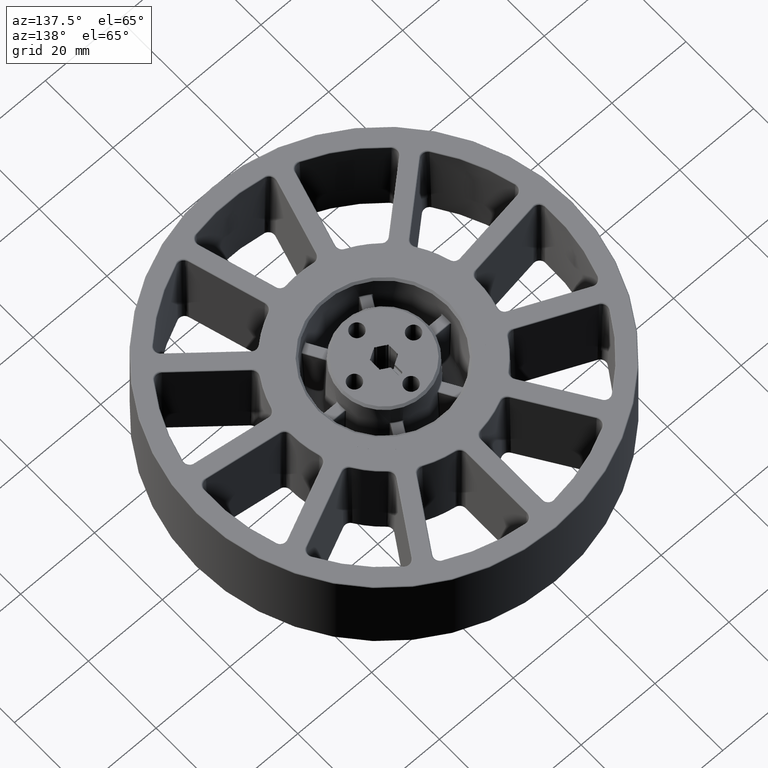
[diagram: clean part render]
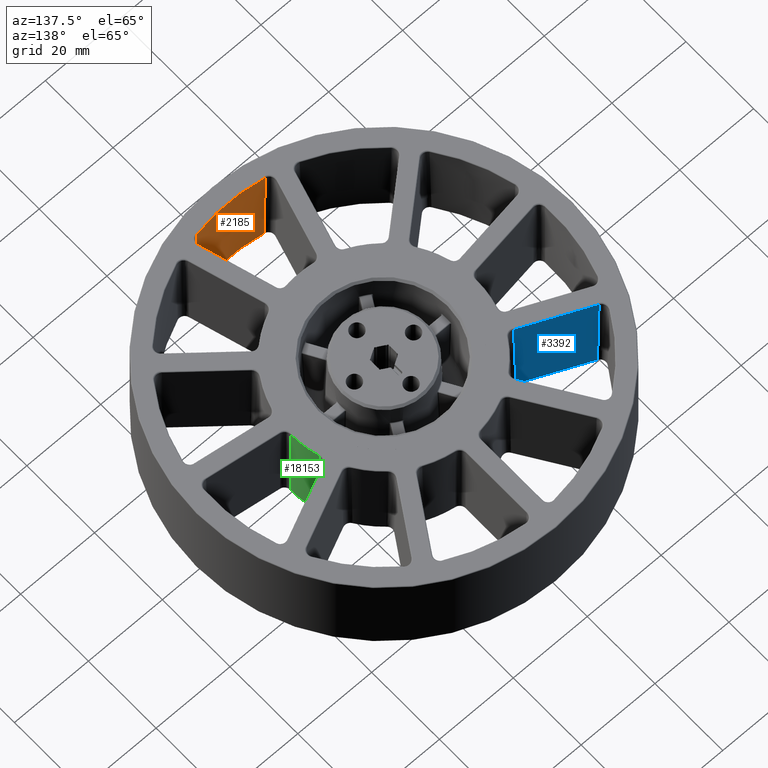
[diagram: same view with three faces highlighted in distinct colors, each labeled with its STEP entity id]
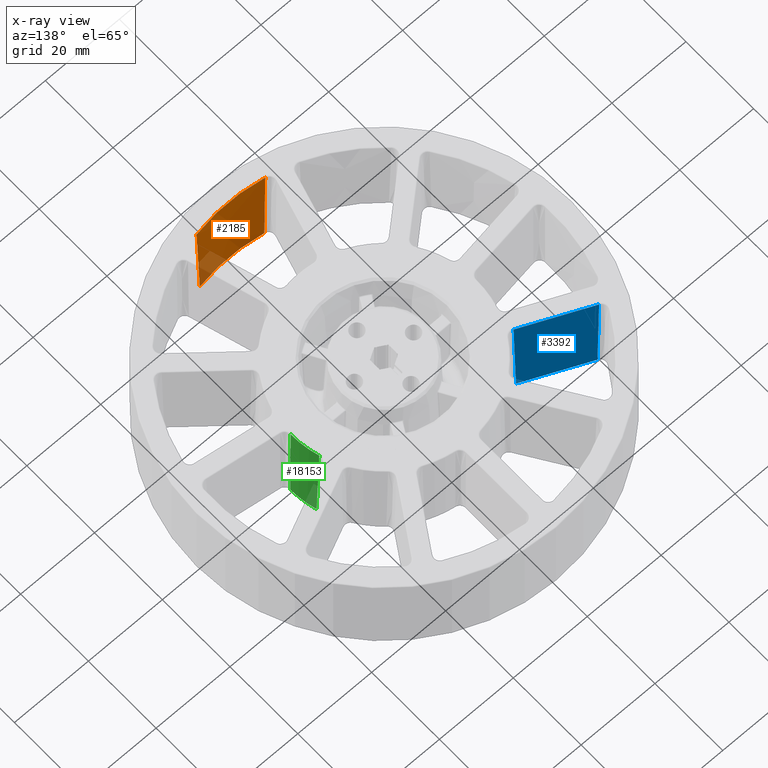
[diagram: x-ray of the same camera — body ghosted, the three highlighted faces saturated]
A machine part, auxiliary view with three faces highlighted in distinct colors.
The next image is the same camera in x-ray (body ghosted, the three faces saturated) — at least one of them is partly hidden behind the body in this view.
Their STEP definitions:

[orange] entity #2185 — the highlighted conical surface has half-angle 1 deg.
#293 = CARTESIAN_POINT ( 'NONE',  ( -8.987327221438798475, -45.03520027336167431, -1.062390363368399537 ) ) ;
#1041 = CARTESIAN_POINT ( 'NONE',  ( 9.272836720811612921, -45.20064032611333005, 11.47565375460269443 ) ) ;
#2185 = ADVANCED_FACE ( 'NONE', ( #26363 ), #27624, .F. ) ;
#2505 = CARTESIAN_POINT ( 'NONE',  ( -8.772119389273258960, -44.90974145527427908, -10.49792821816643773 ) ) ;
#2632 = CIRCLE ( 'NONE', #7347, 46.15900243943838888 ) ;
#3536 = EDGE_CURVE ( 'NONE', #22991, #25358, #2632, .T. ) ;
#5559 = VERTEX_POINT ( 'NONE', #12776 ) ;
#5622 = CARTESIAN_POINT ( 'NONE',  ( 8.798305318948987264, -44.92505878579333967, -9.350881219568577762 ) ) ;
#6300 = AXIS2_PLACEMENT_3D ( 'NONE', #26082, #24473, #24417 ) ;
#6346 = EDGE_CURVE ( 'NONE', #5559, #13563, #22849, .T. ) ;
#6926 = EDGE_LOOP ( 'NONE', ( #28165, #28259, #10313, #10317 ) ) ;
#7104 = CARTESIAN_POINT ( 'NONE',  ( -9.295015327277994288, -45.21345149697981469, 12.45043291123506890 ) ) ;
#7347 = AXIS2_PLACEMENT_3D ( 'NONE', #27398, #27269, #27139 ) ;
#7868 = CARTESIAN_POINT ( 'NONE',  ( 9.035747411843701116, -45.06333720269211085, 1.062359470470772393 ) ) ;
#8802 = CARTESIAN_POINT ( 'NONE',  ( -8.727759427040142626, -44.88381799949333129, -12.44156708876493056 ) ) ;
#9351 = CARTESIAN_POINT ( 'NONE',  ( -9.083726326588276834, -45.09113189956106282, 3.169475658939513885 ) ) ;
#10094 = CARTESIAN_POINT ( 'NONE',  ( 9.250654014310025985, -45.18781784307603999, 10.50087483985303649 ) ) ;
#10313 = ORIENTED_EDGE ( 'NONE', *, *, #21542, .T. ) ;
#10317 = ORIENTED_EDGE ( 'NONE', *, *, #3536, .T. ) ;
#11553 = CARTESIAN_POINT ( 'NONE',  ( -8.794293071661620331, -44.92268579263932082, -9.526108407397474664 ) ) ;
#11583 = EDGE_CURVE ( 'NONE', #25358, #5559, #21123, .T. ) ;
#12285 = DIRECTION ( 'NONE',  ( -1.000000000000000000, 0.0000000000000000000, 0.0000000000000000000 ) ) ;
#12401 = DIRECTION ( 'NONE',  ( 0.0000000000000000000, 0.0000000000000000000, -1.000000000000000000 ) ) ;
#12441 = CARTESIAN_POINT ( 'NONE',  ( 0.0000000000000000000, 0.0000000000000000000, -12.44156708876491635 ) ) ;
#12776 = CARTESIAN_POINT ( 'NONE',  ( 8.727759427040790996, -44.88381799949321049, -12.44156708876493411 ) ) ;
#13563 = VERTEX_POINT ( 'NONE', #8802 ) ;
#13717 = CARTESIAN_POINT ( 'NONE',  ( -8.727759427040142626, -44.88381799949333129, -12.44156708876493056 ) ) ;
#14587 = CARTESIAN_POINT ( 'NONE',  ( 8.727759427040790996, -44.88381799949321049, -12.44156708876493411 ) ) ;
#15301 = B_SPLINE_CURVE_WITH_KNOTS ( 'NONE', 3,
 ( #13717, #22226, #2505, #11553, #20162, #293, #9351, #18061, #26494, #7104 ),
 .UNSPECIFIED., .F., .F.,
 ( 4, 3, 3, 4 ),
 ( 0.0002585232296160794373, 0.003175000000303740844, 0.01587500003731460996, 0.02515916789301200426 ),
 .UNSPECIFIED. ) ;
#15310 = AXIS2_PLACEMENT_3D ( 'NONE', #12441, #12401, #12285 ) ;
#16699 = CARTESIAN_POINT ( 'NONE',  ( 8.939269879081351178, -45.00718911153398949, -3.169501897896196407 ) ) ;
#18061 = CARTESIAN_POINT ( 'NONE',  ( -9.154197623543785411, -45.13201997868783621, 6.263125612137177001 ) ) ;
#18780 = CARTESIAN_POINT ( 'NONE',  ( 9.228467192217555848, -45.17498400397844449, 9.526096168364906802 ) ) ;
#20162 = CARTESIAN_POINT ( 'NONE',  ( -8.890849906808083958, -44.97905280589159815, -5.294251757834467220 ) ) ;
#20477 = CARTESIAN_POINT ( 'NONE',  ( -9.295015327277994288, -45.21345149697981469, 12.45043291123506890 ) ) ;
#20852 = CARTESIAN_POINT ( 'NONE',  ( 9.295015327278649764, -45.21345149697967969, 12.45043291123506890 ) ) ;
#21123 = B_SPLINE_CURVE_WITH_KNOTS ( 'NONE', 3,
 ( #20852, #1041, #10094, #18780, #27206, #7868, #16699, #25143, #5622, #14587 ),
 .UNSPECIFIED., .F., .F.,
 ( 4, 3, 3, 4 ),
 ( 0.0002496532194765752229, 0.003175000000285453389, 0.01587500003629858242, 0.02515029788241554196 ),
 .UNSPECIFIED. ) ;
#21542 = EDGE_CURVE ( 'NONE', #13563, #22991, #15301, .T. ) ;
#22226 = CARTESIAN_POINT ( 'NONE',  ( -8.749941513112649005, -44.89678553944020933, -11.46974777910459053 ) ) ;
#22849 = CIRCLE ( 'NONE', #15310, 45.72451096324519426 ) ;
#22991 = VERTEX_POINT ( 'NONE', #20477 ) ;
#24417 = DIRECTION ( 'NONE',  ( -1.000000000000000000, 0.0000000000000000000, 0.0000000000000000000 ) ) ;
#24473 = DIRECTION ( 'NONE',  ( -0.0000000000000000000, -0.0000000000000000000, 1.000000000000000000 ) ) ;
#24647 = CARTESIAN_POINT ( 'NONE',  ( 9.295015327278649764, -45.21345149697967969, 12.45043291123506890 ) ) ;
#25143 = CARTESIAN_POINT ( 'NONE',  ( 8.868808631061250836, -44.96618200383054642, -6.260192807226189871 ) ) ;
#25358 = VERTEX_POINT ( 'NONE', #24647 ) ;
#26082 = CARTESIAN_POINT ( 'NONE',  ( 0.0000000000000000000, 0.0000000000000000000, -12.69999999999999929 ) ) ;
#26363 = FACE_OUTER_BOUND ( 'NONE', #6926, .T. ) ;
#26494 = CARTESIAN_POINT ( 'NONE',  ( -9.224627123580871668, -45.17279270690299597, 9.356778044382762616 ) ) ;
#27139 = DIRECTION ( 'NONE',  ( -1.000000000000000000, 0.0000000000000000000, 0.0000000000000000000 ) ) ;
#27206 = CARTESIAN_POINT ( 'NONE',  ( 9.132146084978256084, -45.11926761580625111, 5.294225530935802837 ) ) ;
#27269 = DIRECTION ( 'NONE',  ( -0.0000000000000000000, -0.0000000000000000000, 1.000000000000000000 ) ) ;
#27398 = CARTESIAN_POINT ( 'NONE',  ( 0.0000000000000000000, 0.0000000000000000000, 12.45043291123499785 ) ) ;
#27624 = CONICAL_SURFACE ( 'NONE', #6300, 45.71999999999999886, 0.01745329251994333364 ) ;
#28165 = ORIENTED_EDGE ( 'NONE', *, *, #11583, .T. ) ;
#28259 = ORIENTED_EDGE ( 'NONE', *, *, #6346, .T. ) ;

[blue] entity #3392 — the highlighted planar face has unit normal (0.4154, 0.9095, 0.0175).
#196 = CARTESIAN_POINT ( 'NONE',  ( -23.21806901251553512, 12.91305941442446859, 12.45043291123506890 ) ) ;
#537 = VERTEX_POINT ( 'NONE', #2173 ) ;
#631 = VECTOR ( 'NONE', #15834, 1000.000000000000000 ) ;
#742 = CARTESIAN_POINT ( 'NONE',  ( -23.27257119185495782, 13.09716824314428862, 4.153113005094424715 ) ) ;
#1281 = AXIS2_PLACEMENT_3D ( 'NONE', #4013, #3852, #3695 ) ;
#1762 = CARTESIAN_POINT ( 'NONE',  ( -38.91984589565205255, 20.56147697205723190, -12.44156708876493056 ) ) ;
#2173 = CARTESIAN_POINT ( 'NONE',  ( -23.37915422094506468, 13.46428088938142409, -12.44156708876493056 ) ) ;
#2598 = VERTEX_POINT ( 'NONE', #16564 ) ;
#3392 = ADVANCED_FACE ( 'NONE', ( #7579 ), #6994, .T. ) ;
#3695 = DIRECTION ( 'NONE',  ( -0.9096319953545194403, 0.4154150130018840481, 0.0000000000000000000 ) ) ;
#3852 = DIRECTION ( 'NONE',  ( 0.4153517432832961043, 0.9094934539957254538, 0.01745240643728354982 ) ) ;
#4013 = CARTESIAN_POINT ( 'NONE',  ( -18.44741736623399220, 11.21699124168189954, -12.69999999999999929 ) ) ;
#6953 = CARTESIAN_POINT ( 'NONE',  ( -23.21461981214648063, 12.91148421739591967, 12.45043291123506890 ) ) ;
#6994 = PLANE ( 'NONE',  #1281 ) ;
#7560 = DIRECTION ( 'NONE',  ( -0.9096319953545194403, 0.4154150130018840481, -1.015735787256585713E-19 ) ) ;
#7579 = FACE_OUTER_BOUND ( 'NONE', #13501, .T. ) ;
#9057 = EDGE_CURVE ( 'NONE', #537, #12775, #11964, .T. ) ;
#9122 = ORIENTED_EDGE ( 'NONE', *, *, #23273, .T. ) ;
#9262 = ORIENTED_EDGE ( 'NONE', *, *, #16328, .T. ) ;
#9273 = ORIENTED_EDGE ( 'NONE', *, *, #9057, .T. ) ;
#9301 = ORIENTED_EDGE ( 'NONE', *, *, #23404, .T. ) ;
#9809 = CARTESIAN_POINT ( 'NONE',  ( -23.32625498062089875, 13.28090358845186714, -4.144220608770253556 ) ) ;
#10797 = CARTESIAN_POINT ( 'NONE',  ( -39.12469097491047165, 20.49580812331296542, -4.144250076482665968 ) ) ;
#11964 = LINE ( 'NONE', #26920, #15647 ) ;
#12775 = VERTEX_POINT ( 'NONE', #22638 ) ;
#13501 = EDGE_LOOP ( 'NONE', ( #9122, #9273, #9262, #9301 ) ) ;
#15647 = VECTOR ( 'NONE', #7560, 1000.000000000000000 ) ;
#15834 = DIRECTION ( 'NONE',  ( 0.9096319953545194403, -0.4154150130018840481, 1.015735787256585713E-19 ) ) ;
#16328 = EDGE_CURVE ( 'NONE', #12775, #2598, #22749, .T. ) ;
#16564 = CARTESIAN_POINT ( 'NONE',  ( -39.53205109702285824, 20.36340539429166085, 12.45043291123507068 ) ) ;
#18498 = CARTESIAN_POINT ( 'NONE',  ( -23.37915422094506468, 13.46428088938142409, -12.44156708876493056 ) ) ;
#19437 = CARTESIAN_POINT ( 'NONE',  ( -39.32875108196340364, 20.42978047158285904, 4.153083517634013511 ) ) ;
#20006 = LINE ( 'NONE', #6953, #631 ) ;
#20584 = CARTESIAN_POINT ( 'NONE',  ( -23.21806901251553512, 12.91305941442446859, 12.45043291123506890 ) ) ;
#22638 = CARTESIAN_POINT ( 'NONE',  ( -38.91984589565205255, 20.56147697205723190, -12.44156708876493056 ) ) ;
#22749 = B_SPLINE_CURVE_WITH_KNOTS ( 'NONE', 3,
 ( #1762, #10797, #19437, #27871 ),
 .UNSPECIFIED., .F., .F.,
 ( 4, 4 ),
 ( 0.0002585197523565945280, 0.02515883484189918723 ),
 .UNSPECIFIED. ) ;
#23273 = EDGE_CURVE ( 'NONE', #23778, #537, #26741, .T. ) ;
#23404 = EDGE_CURVE ( 'NONE', #2598, #23778, #20006, .T. ) ;
#23778 = VERTEX_POINT ( 'NONE', #196 ) ;
#26741 = B_SPLINE_CURVE_WITH_KNOTS ( 'NONE', 3,
 ( #20584, #742, #9809, #18498 ),
 .UNSPECIFIED., .F., .F.,
 ( 4, 4 ),
 ( 0.0002496339036662443460, 0.02514825751138456689 ),
 .UNSPECIFIED. ) ;
#26920 = CARTESIAN_POINT ( 'NONE',  ( -38.91533934320427335, 20.55941889851403204, -12.44156708876493056 ) ) ;
#27871 = CARTESIAN_POINT ( 'NONE',  ( -39.53205109702285824, 20.36340539429166085, 12.45043291123507068 ) ) ;

[green] entity #18153 — the highlighted conical surface has half-angle 1 deg.
#257 = CARTESIAN_POINT ( 'NONE',  ( 24.61794140071602399, 6.975047515365019102, -12.44156708876493056 ) ) ;
#612 = DIRECTION ( 'NONE',  ( 0.0000000000000000000, 0.0000000000000000000, -1.000000000000000000 ) ) ;
#1794 = CARTESIAN_POINT ( 'NONE',  ( 25.15225731405214304, -0.1113499613537818483, 12.45043291123506890 ) ) ;
#2436 = AXIS2_PLACEMENT_3D ( 'NONE', #4906, #612, #9677 ) ;
#3402 = CIRCLE ( 'NONE', #7209, 25.15250378801646747 ) ;
#3980 = CARTESIAN_POINT ( 'NONE',  ( 24.10204325406032666, 7.193049268953201292, 12.45043291123507068 ) ) ;
#4845 = CARTESIAN_POINT ( 'NONE',  ( 24.23069599990141754, 7.139149513073688169, 6.264139986715501429 ) ) ;
#4906 = CARTESIAN_POINT ( 'NONE',  ( 0.0000000000000000000, 0.0000000000000000000, -12.69999999999999929 ) ) ;
#4924 = VERTEX_POINT ( 'NONE', #21227 ) ;
#6390 = CARTESIAN_POINT ( 'NONE',  ( 25.47868221945818590, 0.1550011740187710596, -6.261171013612370828 ) ) ;
#6505 = EDGE_CURVE ( 'NONE', #7093, #7204, #23292, .T. ) ;
#6991 = CARTESIAN_POINT ( 'NONE',  ( 0.0000000000000000000, 0.0000000000000000000, 12.45043291123499785 ) ) ;
#7072 = CARTESIAN_POINT ( 'NONE',  ( 24.47029849974157756, 7.037969316337991721, -5.293533225195388603 ) ) ;
#7093 = VERTEX_POINT ( 'NONE', #14122 ) ;
#7156 = CARTESIAN_POINT ( 'NONE',  ( 0.0000000000000000000, 0.0000000000000000000, -12.44156708876491635 ) ) ;
#7204 = VERTEX_POINT ( 'NONE', #12948 ) ;
#7209 = AXIS2_PLACEMENT_3D ( 'NONE', #6991, #15880, #24313 ) ;
#7421 = DIRECTION ( 'NONE',  ( 1.000000000000000000, 0.0000000000000000000, 0.0000000000000000000 ) ) ;
#7460 = DIRECTION ( 'NONE',  ( -0.0000000000000000000, -0.0000000000000000000, 1.000000000000000000 ) ) ;
#8626 = CARTESIAN_POINT ( 'NONE',  ( 25.27749797453408220, -0.009587122403833910761, 5.293549218304463011 ) ) ;
#9313 = CARTESIAN_POINT ( 'NONE',  ( 24.59788178696695482, 6.983612865622120580, -11.46964446572924246 ) ) ;
#9677 = DIRECTION ( 'NONE',  ( 1.000000000000000000, 0.0000000000000000000, 0.0000000000000000000 ) ) ;
#10826 = CARTESIAN_POINT ( 'NONE',  ( 25.16933533156456448, -0.09749363856334120060, 11.47555780271721559 ) ) ;
#12948 = CARTESIAN_POINT ( 'NONE',  ( 24.61794140071602399, 6.975047515365019102, -12.44156708876493056 ) ) ;
#13658 = B_SPLINE_CURVE_WITH_KNOTS ( 'NONE', 3,
 ( #257, #9313, #18028, #26462, #7072, #15947, #24397, #4845, #13820, #22329 ),
 .UNSPECIFIED., .F., .F.,
 ( 4, 3, 3, 4 ),
 ( 0.0002584979778974165281, 0.003175000000263738988, 0.01587500003364688064, 0.02515679797145672567 ),
 .UNSPECIFIED. ) ;
#13820 = CARTESIAN_POINT ( 'NONE',  ( 24.16642070291487698, 7.166131929559009350, 9.357287230007882428 ) ) ;
#14122 = CARTESIAN_POINT ( 'NONE',  ( 25.58583976943470617, 0.2431664933767929415, -12.44156708876493411 ) ) ;
#15307 = CARTESIAN_POINT ( 'NONE',  ( 25.53231682532083013, 0.1990677549648513511, -9.351368314761941747 ) ) ;
#15880 = DIRECTION ( 'NONE',  ( 0.0000000000000000000, 0.0000000000000000000, -1.000000000000000000 ) ) ;
#15947 = CARTESIAN_POINT ( 'NONE',  ( 24.38267879745529143, 7.075096144978874513, -1.061269570372077808 ) ) ;
#16114 = EDGE_CURVE ( 'NONE', #4924, #7093, #28121, .T. ) ;
#17387 = CARTESIAN_POINT ( 'NONE',  ( 25.35132239764953610, 0.05065942547389372386, 1.061288407667605016 ) ) ;
#17757 = VERTEX_POINT ( 'NONE', #3980 ) ;
#18028 = CARTESIAN_POINT ( 'NONE',  ( 24.57781247085888410, 6.992172051550173073, -10.49772198854801708 ) ) ;
#18115 = EDGE_LOOP ( 'NONE', ( #27002, #27033, #27150, #27108 ) ) ;
#18153 = ADVANCED_FACE ( 'NONE', ( #24090 ), #26604, .T. ) ;
#19464 = CARTESIAN_POINT ( 'NONE',  ( 25.18640179142940028, -0.08363397194807208057, 10.50068253918432148 ) ) ;
#21227 = CARTESIAN_POINT ( 'NONE',  ( 25.15225731405214304, -0.1113499613537818483, 12.45043291123506890 ) ) ;
#21750 = EDGE_CURVE ( 'NONE', #7204, #17757, #13658, .T. ) ;
#22329 = CARTESIAN_POINT ( 'NONE',  ( 24.10204325406032666, 7.193049268953201292, 12.45043291123507068 ) ) ;
#23292 = CIRCLE ( 'NONE', #23742, 25.58699526420965853 ) ;
#23742 = AXIS2_PLACEMENT_3D ( 'NONE', #7156, #7460, #7421 ) ;
#23760 = CARTESIAN_POINT ( 'NONE',  ( 25.58583976943470617, 0.2431664933767929415, -12.44156708876493411 ) ) ;
#24090 = FACE_OUTER_BOUND ( 'NONE', #18115, .T. ) ;
#24313 = DIRECTION ( 'NONE',  ( 1.000000000000000000, 0.0000000000000000000, 0.0000000000000000000 ) ) ;
#24397 = CARTESIAN_POINT ( 'NONE',  ( 24.29487062379894269, 7.112103025753982344, 3.170991217330692891 ) ) ;
#25843 = CARTESIAN_POINT ( 'NONE',  ( 25.42493432369485618, 0.1109672758481236310, -3.170975219388541433 ) ) ;
#25986 = EDGE_CURVE ( 'NONE', #17757, #4924, #3402, .T. ) ;
#26462 = CARTESIAN_POINT ( 'NONE',  ( 24.55773340876152488, 7.000725043445156892, -9.525799658270390324 ) ) ;
#26604 = CONICAL_SURFACE ( 'NONE', #2436, 25.59150622745486103, 0.01745329251994333364 ) ;
#27002 = ORIENTED_EDGE ( 'NONE', *, *, #16114, .T. ) ;
#27033 = ORIENTED_EDGE ( 'NONE', *, *, #6505, .T. ) ;
#27108 = ORIENTED_EDGE ( 'NONE', *, *, #25986, .T. ) ;
#27150 = ORIENTED_EDGE ( 'NONE', *, *, #21750, .T. ) ;
#27900 = CARTESIAN_POINT ( 'NONE',  ( 25.20345674740153186, -0.06977097883670664580, 9.525807121774533925 ) ) ;
#28121 = B_SPLINE_CURVE_WITH_KNOTS ( 'NONE', 3,
 ( #1794, #10826, #19464, #27900, #8626, #17387, #25843, #6390, #15307, #23760 ),
 .UNSPECIFIED., .F., .F.,
 ( 4, 3, 3, 4 ),
 ( 0.0002496305873498551472, 0.003175000000283998390, 0.01587500003477215760, 0.02514793058141426285 ),
 .UNSPECIFIED. ) ;